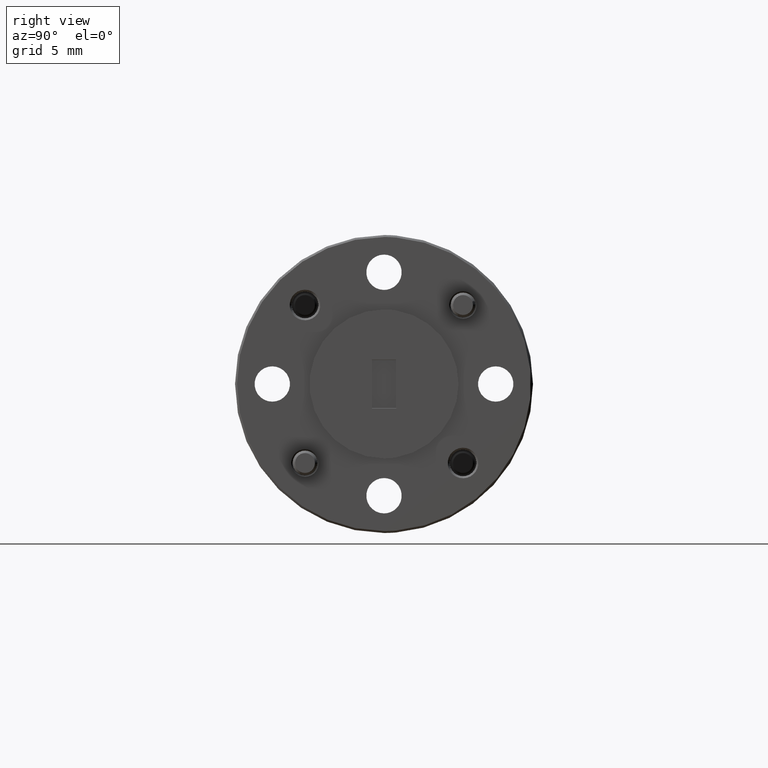
[diagram: clean part render]
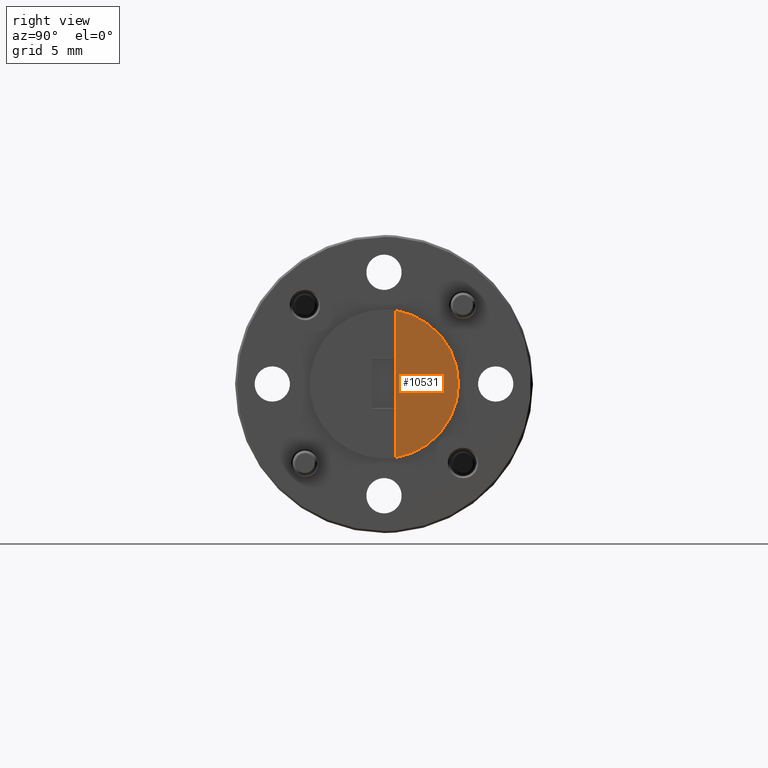
[diagram: same view with one face highlighted and labeled with its STEP entity id]
A machine part, right view. The second image highlights one B-rep face of the part: STEP entity #10531.
In plain terms, the highlighted planar face has unit normal (-1, 0, 0).
Its self-contained STEP definition (entity closure, byte-faithful):
#23 = DIRECTION ( 'NONE',  ( 0.0000000000000000000, 0.0000000000000000000, 1.000000000000000000 ) ) ;
#282 = ORIENTED_EDGE ( 'NONE', *, *, #1461, .T. ) ;
#795 = AXIS2_PLACEMENT_3D ( 'NONE', #6673, #10278, #7559 ) ;
#1461 = EDGE_CURVE ( 'NONE', #7311, #7599, #10771, .T. ) ;
#1512 = CARTESIAN_POINT ( 'NONE',  ( 0.5999999999999999800, 0.0000000000000000000, -0.1850027026829613200 ) ) ;
#1915 = EDGE_LOOP ( 'NONE', ( #282, #1933 ) ) ;
#1933 = ORIENTED_EDGE ( 'NONE', *, *, #2367, .T. ) ;
#2367 = EDGE_CURVE ( 'NONE', #7599, #7311, #9798, .T. ) ;
#2669 = DIRECTION ( 'NONE',  ( -1.000000000000000000, 0.0000000000000000000, 0.0000000000000000000 ) ) ;
#2698 = VECTOR ( 'NONE', #11214, 39.37007874015748100 ) ;
#3223 = CARTESIAN_POINT ( 'NONE',  ( 0.5999999999999998700, 0.0000000000000000000, 0.3749999999999999400 ) ) ;
#3651 = FACE_OUTER_BOUND ( 'NONE', #1915, .T. ) ;
#4879 = AXIS2_PLACEMENT_3D ( 'NONE', #8067, #2669, #23 ) ;
#5364 = PLANE ( 'NONE',  #4879 ) ;
#6673 = CARTESIAN_POINT ( 'NONE',  ( 0.5999999999999999800, -0.03050000000000002400, -4.908789363615472900E-016 ) ) ;
#7311 = VERTEX_POINT ( 'NONE', #1512 ) ;
#7559 = DIRECTION ( 'NONE',  ( 0.0000000000000000000, 0.0000000000000000000, -1.000000000000000000 ) ) ;
#7599 = VERTEX_POINT ( 'NONE', #7765 ) ;
#7765 = CARTESIAN_POINT ( 'NONE',  ( 0.5999999999999999800, 0.0000000000000000000, 0.1850027026829603500 ) ) ;
#8067 = CARTESIAN_POINT ( 'NONE',  ( 0.5999999999999998700, 0.3449999999999999200, 0.3749999999999999400 ) ) ;
#9798 = LINE ( 'NONE', #3223, #2698 ) ;
#10278 = DIRECTION ( 'NONE',  ( 1.000000000000000000, 0.0000000000000000000, 0.0000000000000000000 ) ) ;
#10531 = ADVANCED_FACE ( 'NONE', ( #3651 ), #5364, .F. ) ;
#10771 = CIRCLE ( 'NONE', #795, 0.1875000000000000300 ) ;
#11214 = DIRECTION ( 'NONE',  ( 0.0000000000000000000, 0.0000000000000000000, -1.000000000000000000 ) ) ;